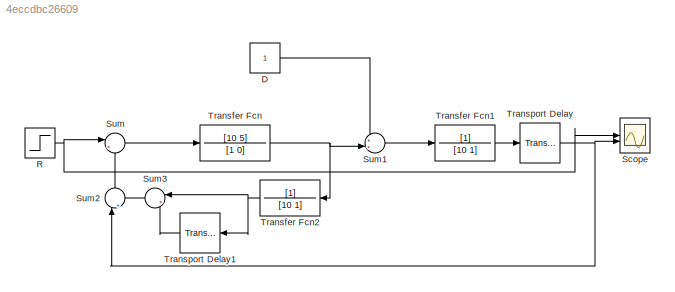
MODEL slx_4eccdbc26609
KIND model
CONFIG AbsTol = auto
CONFIG EnableMultiTasking = off
CONFIG FixedStep = auto
CONFIG MaxStep = auto
CONFIG MinStep = auto
CONFIG RelTol = 1e-3
CONFIG SampleTimeConstraint = Unconstrained
CONFIG SolverName = VariableStepAuto
CONFIG StartTime = 0.0
CONFIG StopTime = 70
BLOCK [Constant] D
BLOCK [Step] R
  SampleTime = 0
BLOCK [Scope] Scope
  Floating = off
  NumInputPorts = 2
  ScopeSpecificationString = Simulink.scopes.TimeScopeBlockCfg('CurrentConfiguration', extmgr.ConfigurationSet(extmgr.Configuration('Core','General UI',true,'FigureColor',[1 1 1]),extmgr.Configuration('Core','Source UI',true),extmgr.Configuration('Sources','WiredSimulink',true),extmgr.Configuration('Visuals','Time Domain',true,'SerializedDisplays',{struct('MinYLimReal','-0.20216','MaxYLimReal','1.8194','YLabelReal','','MinYLi...<+1625ch>
BLOCK [Sum] Sum
  Inputs = |+-
BLOCK [Sum] Sum1
  Inputs = ++|
BLOCK [Sum] Sum2
  Inputs = |++
  NameLocation = right
BLOCK [Sum] Sum3
  Inputs = |+-
  NameLocation = top
BLOCK [TransferFcn] Transfer Fcn
  Denominator = [1 0]
  Numerator = [10 5]
BLOCK [TransferFcn] Transfer Fcn1
  Denominator = [10 1]
BLOCK [TransferFcn] Transfer Fcn2
  Denominator = [10 1]
  NameLocation = top
BLOCK [TransportDelay] Transport Delay
  DelayTime = 10
BLOCK [TransportDelay] Transport Delay1
  DelayTime = 10
  NameLocation = top
LINE D:1 -> Sum1:1
NET R:1 -> Scope:1, Sum:1
LINE Sum1:1 -> Transfer Fcn1:1
LINE Sum2:1 -> Sum:2
LINE Sum3:1 -> Sum2:2
LINE Sum:1 -> Transfer Fcn:1
LINE Transfer Fcn1:1 -> Transport Delay:1
NET Transfer Fcn2:1 -> Sum3:1, Transport Delay1:1
NET Transfer Fcn:1 -> Sum1:2, Transfer Fcn2:1
LINE Transport Delay1:1 -> Sum3:2
NET Transport Delay:1 -> Scope:2, Sum2:1
note: NET lines group one-source signal fan-out (src -> all destinations, sorted); 1:1 wires keep LINE
